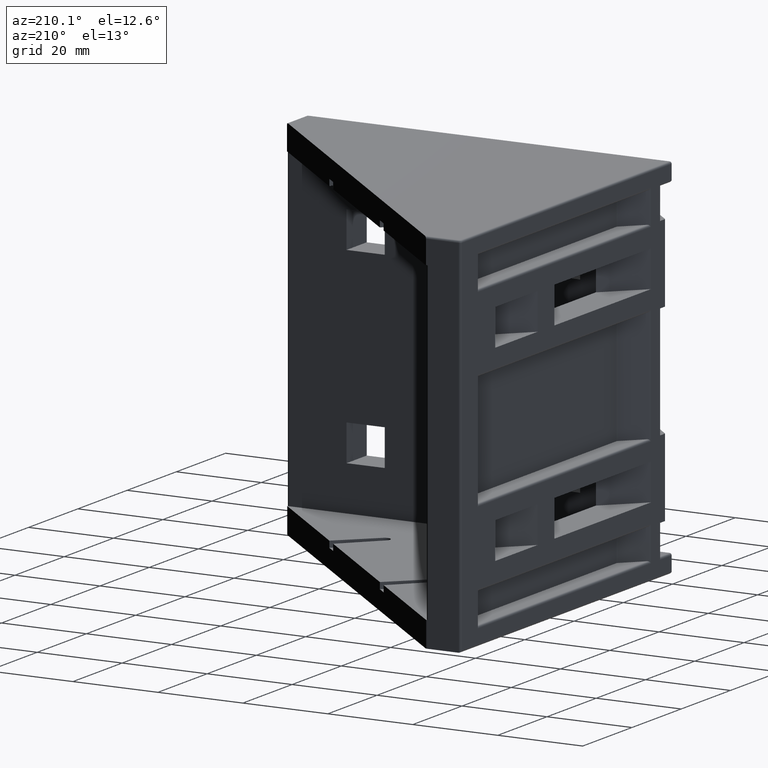
[diagram: clean part render]
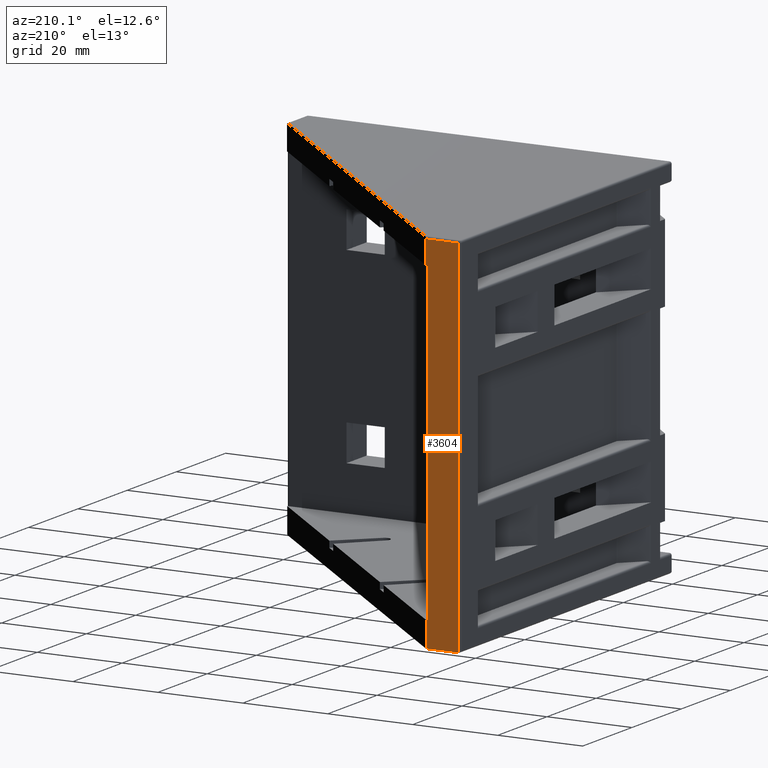
[diagram: same view with one face highlighted and labeled with its STEP entity id]
A machine part, auxiliary view. The second image highlights one B-rep face of the part: STEP entity #3604.
In plain terms, the highlighted planar face has unit normal (0, 1, 0).
Its self-contained STEP definition (entity closure, byte-faithful):
#468=FACE_OUTER_BOUND('',#686,.T.);
#686=EDGE_LOOP('',(#3289,#3290,#3291,#3292,#3293,#3294,#3295,#3296));
#707=LINE('',#5087,#1072);
#735=LINE('',#5162,#1100);
#888=LINE('',#5574,#1253);
#892=LINE('',#5583,#1257);
#977=LINE('',#5885,#1342);
#987=LINE('',#5936,#1352);
#996=LINE('',#5952,#1361);
#1051=LINE('',#6073,#1416);
#1072=VECTOR('',#4022,10.);
#1100=VECTOR('',#4086,10.);
#1253=VECTOR('',#4445,10.);
#1257=VECTOR('',#4455,10.);
#1342=VECTOR('',#4782,10.);
#1352=VECTOR('',#4850,10.);
#1361=VECTOR('',#4873,10.);
#1416=VECTOR('',#5028,10.);
#1435=VERTEX_POINT('',#5084);
#1436=VERTEX_POINT('',#5086);
#1464=VERTEX_POINT('',#5159);
#1465=VERTEX_POINT('',#5161);
#1621=VERTEX_POINT('',#5572);
#1717=VERTEX_POINT('',#5878);
#1719=VERTEX_POINT('',#5884);
#1731=VERTEX_POINT('',#5934);
#1772=EDGE_CURVE('',#1435,#1436,#707,.T.);
#1809=EDGE_CURVE('',#1464,#1465,#735,.T.);
#2017=EDGE_CURVE('',#1621,#1435,#888,.T.);
#2022=EDGE_CURVE('',#1436,#1464,#892,.T.);
#2174=EDGE_CURVE('',#1717,#1719,#977,.T.);
#2200=EDGE_CURVE('',#1731,#1717,#987,.T.);
#2209=EDGE_CURVE('',#1719,#1621,#996,.T.);
#2264=EDGE_CURVE('',#1731,#1465,#1051,.T.);
#3289=ORIENTED_EDGE('',*,*,#2017,.F.);
#3290=ORIENTED_EDGE('',*,*,#2209,.F.);
#3291=ORIENTED_EDGE('',*,*,#2174,.F.);
#3292=ORIENTED_EDGE('',*,*,#2200,.F.);
#3293=ORIENTED_EDGE('',*,*,#2264,.T.);
#3294=ORIENTED_EDGE('',*,*,#1809,.F.);
#3295=ORIENTED_EDGE('',*,*,#2022,.F.);
#3296=ORIENTED_EDGE('',*,*,#1772,.F.);
#3410=PLANE('',#3971);
#3604=ADVANCED_FACE('',(#468),#3410,.T.);
#3971=AXIS2_PLACEMENT_3D('',#6075,#5030,#5031);
#4022=DIRECTION('',(-1.,0.,0.));
#4086=DIRECTION('',(1.,0.,0.));
#4445=DIRECTION('',(0.,0.,1.));
#4455=DIRECTION('',(0.,0.,1.));
#4782=DIRECTION('',(0.,0.,-1.));
#4850=DIRECTION('',(-1.,0.,0.));
#4873=DIRECTION('',(1.,0.,0.));
#5028=DIRECTION('',(0.,0.,-1.));
#5030=DIRECTION('center_axis',(0.,1.,0.));
#5031=DIRECTION('ref_axis',(-1.,0.,0.));
#5084=CARTESIAN_POINT('',(7.99289321881347,86.,-37.));
#5086=CARTESIAN_POINT('',(7.7,86.,-37.));
#5087=CARTESIAN_POINT('',(47.1,86.,-37.));
#5159=CARTESIAN_POINT('',(7.7,86.,37.));
#5161=CARTESIAN_POINT('',(8.2,86.,37.));
#5162=CARTESIAN_POINT('',(47.1,86.,37.));
#5572=CARTESIAN_POINT('',(7.99289321881347,86.,-43.));
#5574=CARTESIAN_POINT('',(7.99289321881347,86.,0.));
#5583=CARTESIAN_POINT('',(7.7,86.,0.));
#5878=CARTESIAN_POINT('',(0.5,86.,42.5));
#5884=CARTESIAN_POINT('',(0.5,86.,-43.));
#5885=CARTESIAN_POINT('',(0.5,86.,0.));
#5934=CARTESIAN_POINT('',(8.2,86.,42.5));
#5936=CARTESIAN_POINT('',(20.2162932381858,86.,42.5));
#5952=CARTESIAN_POINT('',(0.,86.,-43.));
#6073=CARTESIAN_POINT('',(8.2,86.,0.));
#6075=CARTESIAN_POINT('Origin',(8.2,86.,0.));